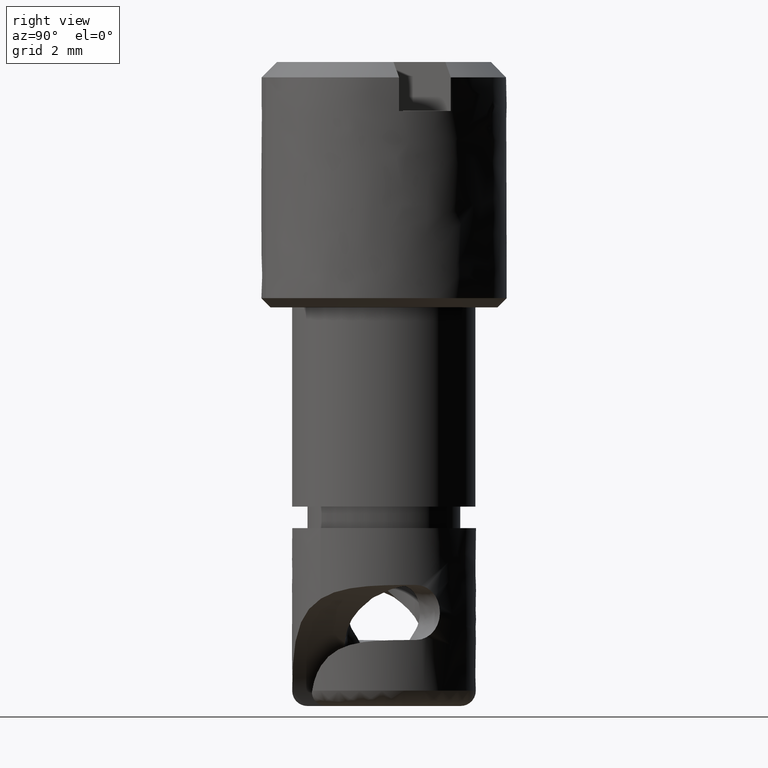
[diagram: clean part render]
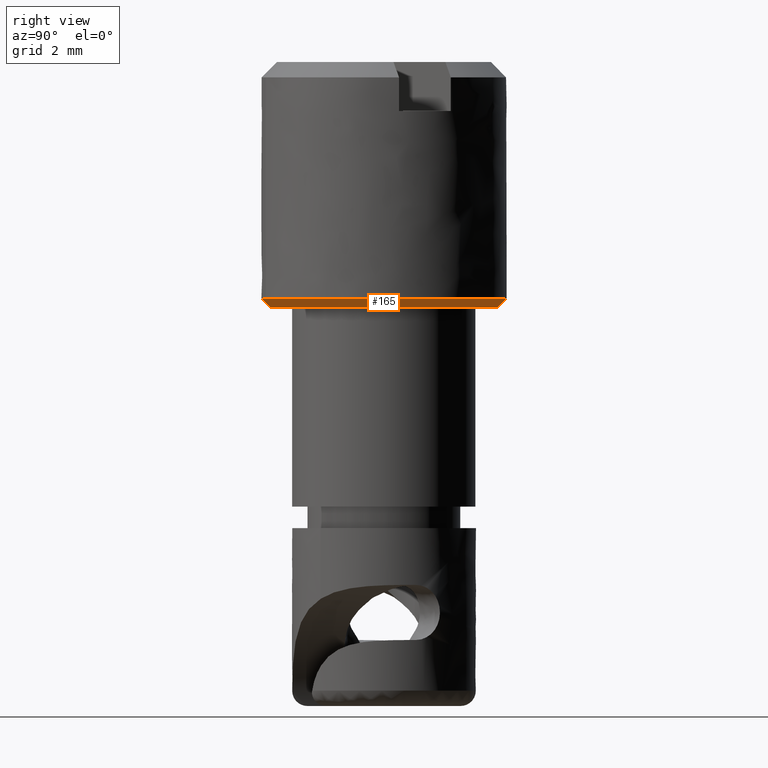
[diagram: same view with one face highlighted and labeled with its STEP entity id]
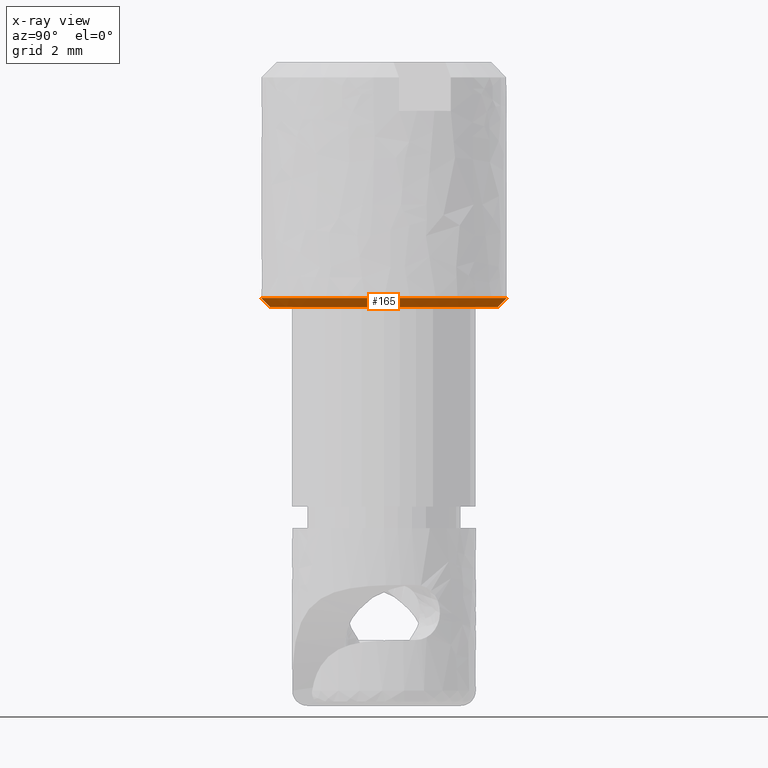
[diagram: x-ray of the same camera — body ghosted, the highlighted face saturated]
A machine part, right view. The second image highlights one B-rep face of the part: STEP entity #165.
The next image is the same camera in x-ray: the body ghosted, the highlighted face saturated — about 0% of this face is hidden behind the body in this view.
In plain terms, the highlighted face is a freeform B-spline surface patch.
Its self-contained STEP definition (entity closure, byte-faithful):
#44=CARTESIAN_POINT('',(-0.612728405079464,-3.641311534546962,10.194930999999997));
#45=CARTESIAN_POINT('',(-0.292497666237041,-3.695197193054000,10.194930999999997));
#46=CARTESIAN_POINT('',(0.032222767233888,-3.692363400762141,10.194931000000000));
#47=CARTESIAN_POINT('',(3.724586167996028,-3.660140633528253,10.194930999999999));
#48=CARTESIAN_POINT('',(3.692363400762141,0.032222767233888,10.194931000000000));
#49=CARTESIAN_POINT('',(3.660140633528253,3.724586167996028,10.194930999999999));
#50=CARTESIAN_POINT('',(-0.032222767233888,3.692363400762141,10.194931000000000));
#51=CARTESIAN_POINT('',(-0.665030131543669,-3.952129310044304,10.510118500000001));
#52=CARTESIAN_POINT('',(-0.317464899360441,-4.010614580627776,10.510118499999999));
#53=CARTESIAN_POINT('',(0.034973262141281,-4.007538899387933,10.510118500000001));
#54=CARTESIAN_POINT('',(4.042512161529215,-3.972565637246652,10.510118500000001));
#55=CARTESIAN_POINT('',(4.007538899387933,0.034973262141281,10.510118500000001));
#56=CARTESIAN_POINT('',(3.972565637246652,4.042512161529215,10.510118500000001));
#57=CARTESIAN_POINT('',(-0.034973262141281,4.007538899387933,10.510118500000001));
#65=(BOUNDED_SURFACE()B_SPLINE_SURFACE(2,1,((#44,#51),(#45,#52),(#46,#53),(#47,#54),(#48,#55),(#49,#56),(#50,#57)),.UNSPECIFIED.,.F.,.F.,.U.)B_SPLINE_SURFACE_WITH_KNOTS((3,2,2,3),(2,2),(0.0,0.796819283091540,7.436979975521032,14.077140667950530),(0.0,0.445742437190477),.UNSPECIFIED.)GEOMETRIC_REPRESENTATION_ITEM()RATIONAL_B_SPLINE_SURFACE(((0.938140952186599,0.938140952186599),(0.964852813742386,0.964852813742386),(1.0,1.0),(0.707106781186548,0.707106781186548),(1.0,1.0),(0.707106781186548,0.707106781186548),(1.0,1.0)))REPRESENTATION_ITEM('')SURFACE());
#66=CARTESIAN_POINT('',(-0.663754479683735,-3.944548388690484,10.502431000000620));
#67=VERTEX_POINT('',#66);
#68=CARTESIAN_POINT('',(1.068951839341587,-3.854526425538705,10.502431000000000));
#69=VERTEX_POINT('',#68);
#70=CARTESIAN_POINT('',(-0.663754479683735,-3.944548388690485,10.502431000000616));
#71=CARTESIAN_POINT('',(-0.334193853080040,-4.000004000000000,10.502431000000000));
#72=CARTESIAN_POINT('',(0.0,-4.000004000000000,10.502431000000000));
#73=CARTESIAN_POINT('',(0.544375207876414,-4.000004000000000,10.502431000000000));
#74=CARTESIAN_POINT('',(1.068951839341587,-3.854526425538705,10.502430999999998));
#82=(BOUNDED_CURVE()B_SPLINE_CURVE(2,(#70,#71,#72,#73,#74),.UNSPECIFIED.,.F.,.U.)B_SPLINE_CURVE_WITH_KNOTS((3,2,3),(0.221449239581989,0.250000000000000,0.295548712194187),.UNSPECIFIED.)CURVE()GEOMETRIC_REPRESENTATION_ITEM()RATIONAL_B_SPLINE_CURVE((0.940741429850930,0.966550703526388,1.0,0.946636364290548,0.912717887657618))REPRESENTATION_ITEM(''));
#83=EDGE_CURVE('',#67,#69,#82,.T.);
#84=ORIENTED_EDGE('',*,*,#83,.F.);
#85=CARTESIAN_POINT('',(-0.613972943496054,-3.648707555379218,10.202431000001431));
#86=VERTEX_POINT('',#85);
#87=CARTESIAN_POINT('',(-0.613972943496054,-3.648707555379218,10.202431000001431));
#88=CARTESIAN_POINT('',(-0.663754479683735,-3.944548388690484,10.502431000000620));
#89=QUASI_UNIFORM_CURVE('',1,(#87,#88),.UNSPECIFIED.,.F.,.U.);
#90=EDGE_CURVE('',#86,#67,#89,.T.);
#91=ORIENTED_EDGE('',*,*,#90,.F.);
#92=CARTESIAN_POINT('',(3.700004000000000,0.0,10.202431000000001));
#93=VERTEX_POINT('',#92);
#94=CARTESIAN_POINT('',(3.700004000000000,0.0,10.202431000000001));
#95=CARTESIAN_POINT('',(3.700004000000000,-3.700004000000000,10.202430999999999));
#96=CARTESIAN_POINT('',(0.0,-3.700004000000000,10.202431000000001));
#97=CARTESIAN_POINT('',(-0.309129339170611,-3.700003999999999,10.202431000000001));
#98=CARTESIAN_POINT('',(-0.613972943496054,-3.648707555379218,10.202431000001431));
#106=(BOUNDED_CURVE()B_SPLINE_CURVE(2,(#94,#95,#96,#97,#98),.UNSPECIFIED.,.F.,.U.)B_SPLINE_CURVE_WITH_KNOTS((3,2,3),(0.500000000000000,0.750000000000000,0.778550760418641),.UNSPECIFIED.)CURVE()GEOMETRIC_REPRESENTATION_ITEM()RATIONAL_B_SPLINE_CURVE((1.0,0.707106781186548,1.0,0.966550703525650,0.940741429849790))REPRESENTATION_ITEM(''));
#107=EDGE_CURVE('',#93,#86,#106,.T.);
#108=ORIENTED_EDGE('',*,*,#107,.F.);
#109=CARTESIAN_POINT('',(-0.032288216251072,3.699863115185245,10.202431000000130));
#110=VERTEX_POINT('',#109);
#111=CARTESIAN_POINT('',(-0.032288216251072,3.699863115185245,10.202431000000134));
#112=CARTESIAN_POINT('',(-0.016144415490944,3.700004000000000,10.202431000000002));
#113=CARTESIAN_POINT('',(0.0,3.700004000000000,10.202431000000001));
#114=CARTESIAN_POINT('',(3.700004000000000,3.700004000000000,10.202430999999999));
#115=CARTESIAN_POINT('',(3.700004000000000,0.0,10.202431000000001));
#123=(BOUNDED_CURVE()B_SPLINE_CURVE(2,(#111,#112,#113,#114,#115),.UNSPECIFIED.,.F.,.U.)B_SPLINE_CURVE_WITH_KNOTS((3,2,3),(0.248460105664923,0.250000000000000,0.500000000000000),.UNSPECIFIED.)CURVE()GEOMETRIC_REPRESENTATION_ITEM()RATIONAL_B_SPLINE_CURVE((0.996414028100198,0.998195901566267,1.0,0.707106781186548,1.0))REPRESENTATION_ITEM(''));
#124=EDGE_CURVE('',#110,#93,#123,.T.);
#125=ORIENTED_EDGE('',*,*,#124,.F.);
#126=CARTESIAN_POINT('',(-0.034906178251723,3.999851692641447,10.502431000548849));
#127=VERTEX_POINT('',#126);
#128=CARTESIAN_POINT('',(-0.032288216251072,3.699863115185245,10.202431000000130));
#129=CARTESIAN_POINT('',(-0.034906178251723,3.999851692641447,10.502431000548849));
#130=QUASI_UNIFORM_CURVE('',1,(#128,#129),.UNSPECIFIED.,.F.,.U.);
#131=EDGE_CURVE('',#110,#127,#130,.T.);
#132=ORIENTED_EDGE('',*,*,#131,.T.);
#133=CARTESIAN_POINT('',(4.000004000000000,0.0,10.502431000000000));
#134=VERTEX_POINT('',#133);
#135=CARTESIAN_POINT('',(4.000004000000000,0.0,10.502431000000000));
#136=CARTESIAN_POINT('',(4.000003999999999,4.000003999999999,10.502431000000000));
#137=CARTESIAN_POINT('',(0.0,4.000004000000000,10.502431000000000));
#138=CARTESIAN_POINT('',(-0.017453422083580,4.000004000000000,10.502431000000001));
#139=CARTESIAN_POINT('',(-0.034906178251723,3.999851692641447,10.502431000548855));
#147=(BOUNDED_CURVE()B_SPLINE_CURVE(2,(#135,#136,#137,#138,#139),.UNSPECIFIED.,.F.,.U.)B_SPLINE_CURVE_WITH_KNOTS((3,2,3),(0.500000000000000,0.750000000000000,0.751539894453650),.UNSPECIFIED.)CURVE()GEOMETRIC_REPRESENTATION_ITEM()RATIONAL_B_SPLINE_CURVE((1.0,0.707106781186547,1.0,0.998195901427350,0.996414027825788))REPRESENTATION_ITEM(''));
#148=EDGE_CURVE('',#134,#127,#147,.T.);
#149=ORIENTED_EDGE('',*,*,#148,.F.);
#150=CARTESIAN_POINT('',(1.068951839341587,-3.854526425538705,10.502430999999998));
#151=CARTESIAN_POINT('',(4.000004000000000,-3.041675960283423,10.502431000000000));
#152=CARTESIAN_POINT('',(4.000004000000000,0.0,10.502431000000000));
#160=(BOUNDED_CURVE()B_SPLINE_CURVE(2,(#150,#151,#152),.UNSPECIFIED.,.F.,.U.)B_SPLINE_CURVE_WITH_KNOTS((3,3),(0.295548712194187,0.500000000000000),.UNSPECIFIED.)CURVE()GEOMETRIC_REPRESENTATION_ITEM()RATIONAL_B_SPLINE_CURVE((0.912717887657618,0.760470416896000,1.0))REPRESENTATION_ITEM(''));
#161=EDGE_CURVE('',#69,#134,#160,.T.);
#162=ORIENTED_EDGE('',*,*,#161,.F.);
#163=EDGE_LOOP('',(#84,#91,#108,#125,#132,#149,#162));
#164=FACE_OUTER_BOUND('',#163,.T.);
#165=ADVANCED_FACE('',(#164),#65,.T.);